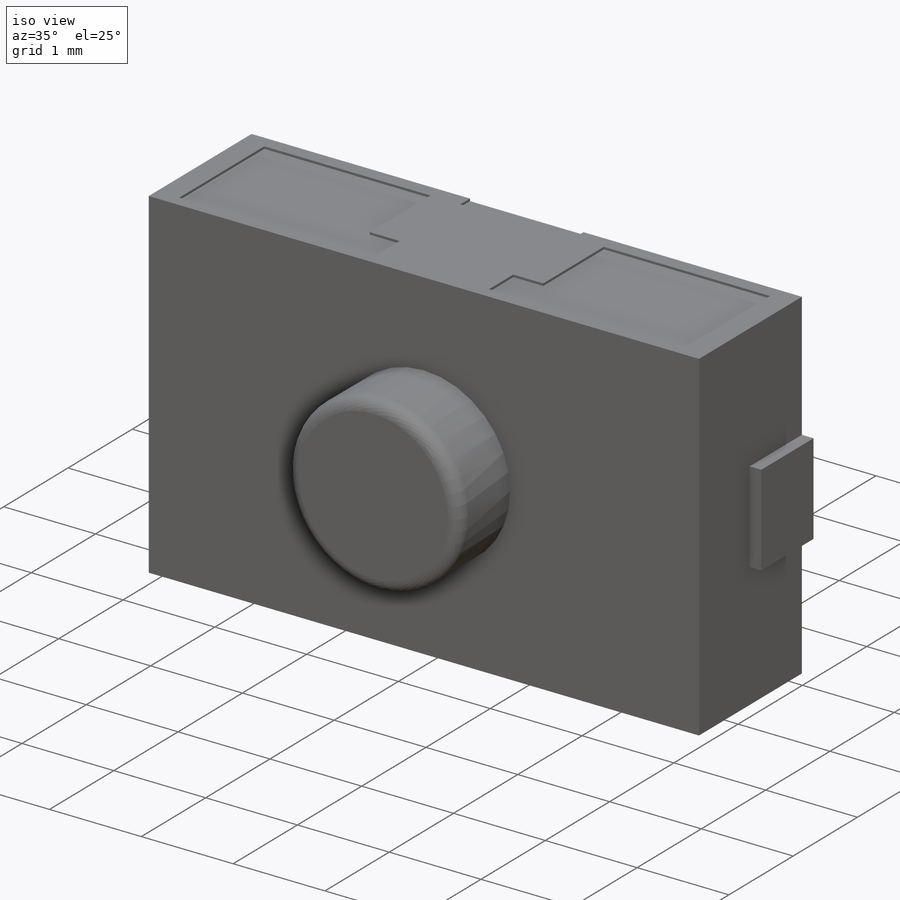
[diagram: iso view]
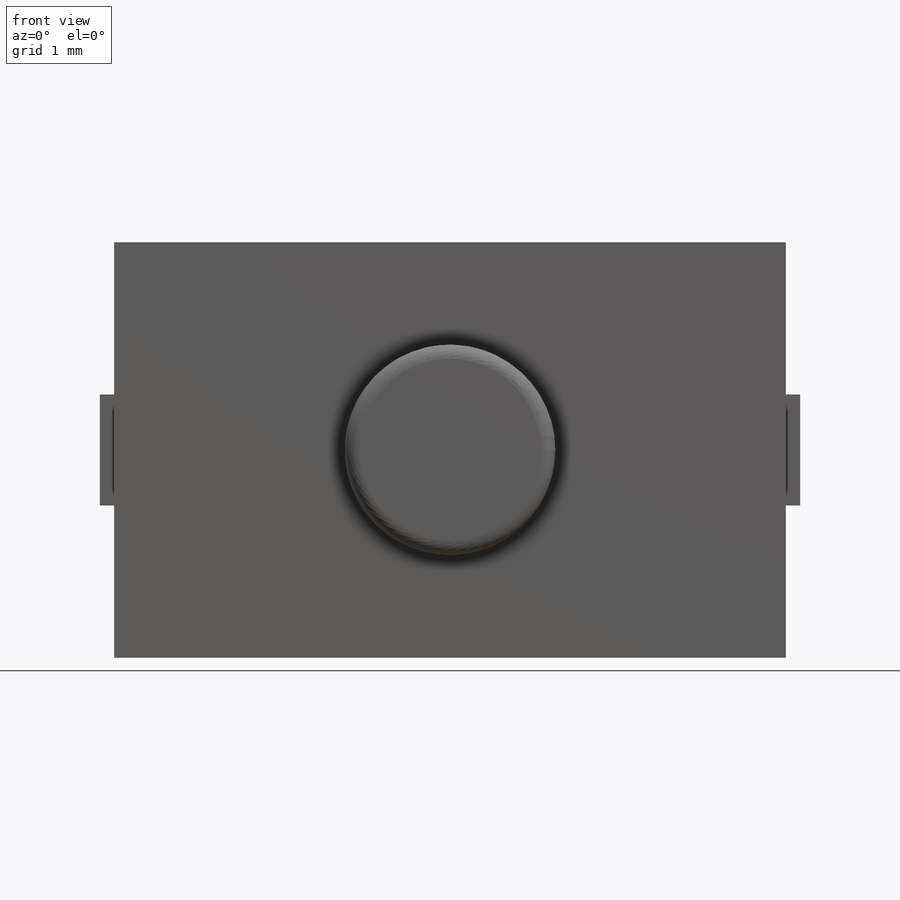
[diagram: front view]
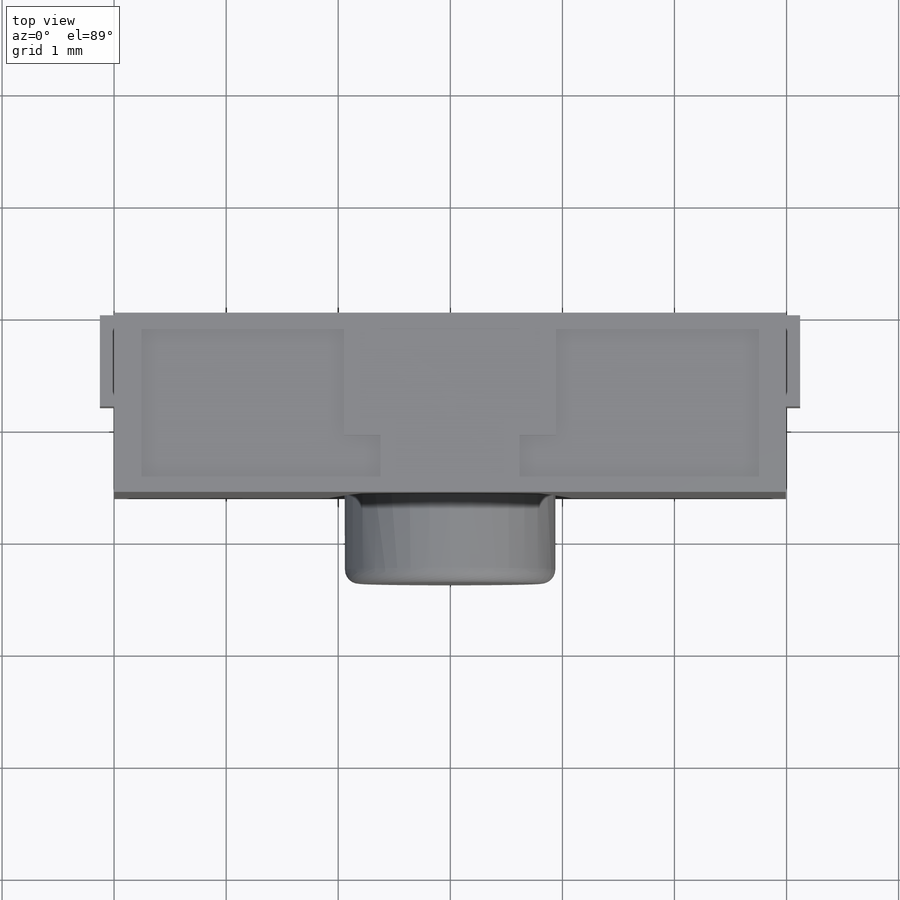
[diagram: top view]
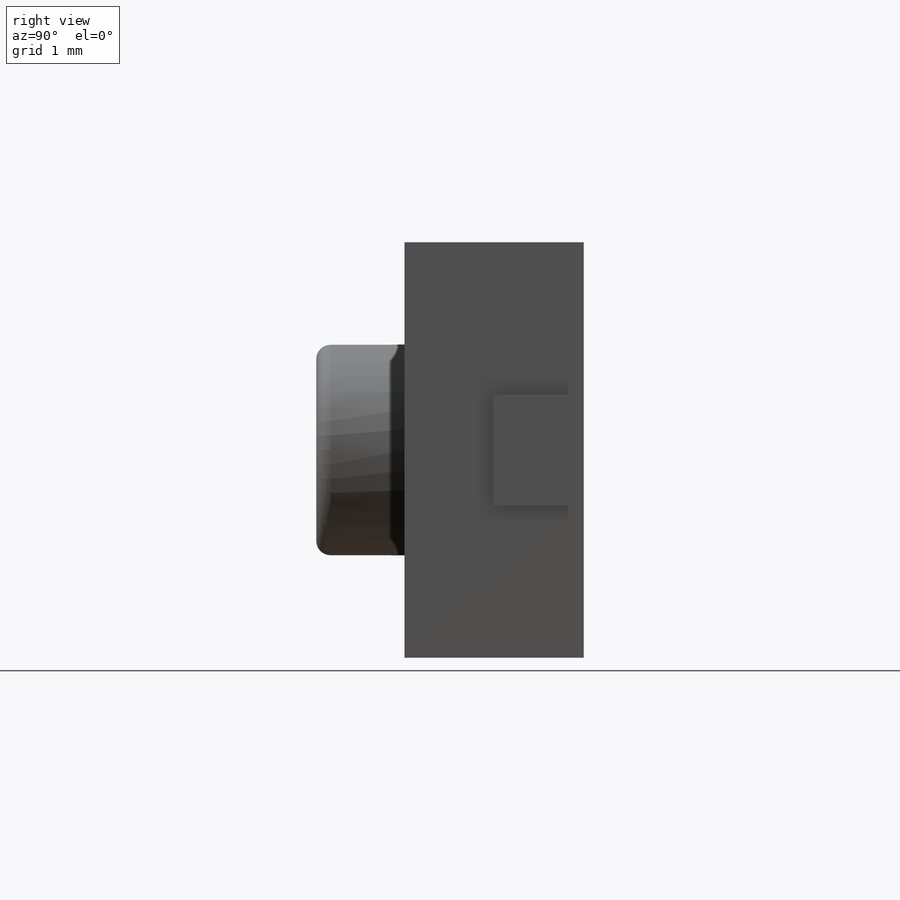
[diagram: right view]
SOLIDWORKS PART (.sldprt)
format: sldprt  version: not decoded by parser v0  size: 318,976 bytes
history: native  units: mm
features: sketch x6, extrude x4, cut_extrude x2, material x1, fillet x1 (+16 scaffold rows collapsed)
feature tree (30):
  scaffold x16  (default folders/planes/origin — collapsed)
  material  "Material <not specified>"
  sketch  "Sketch1"  dims[D1=5.9944mm D2=3.7084mm]
  extrude  "Boss-Extrude1"  Depth=1.6002mm
  sketch  "Sketch2"  dims[D1=1.8796mm]
  extrude  "Boss-Extrude2"  Depth=0.7874mm
  sketch  "Sketch3"  dims[D1=0.8128mm D2=0.9906mm]
  extrude  "Boss-Extrude3"  Depth=0.127mm
  sketch  "Sketch4"
  extrude  "Boss-Extrude4"  Depth=0.127mm
  sketch  "Sketch5"
  cut_extrude  "Cut-Extrude1"  Depth=0.0254mm
  sketch  "Sketch6"
  cut_extrude  "Cut-Extrude2"  Depth=0.0254mm
  fillet  "Fillet1"  Radius=0.127mm
decode coverage: 10 of 13 modeling features carry decoded parameters
note: suppression state not decoded; provenance and decode notes live in map.json
